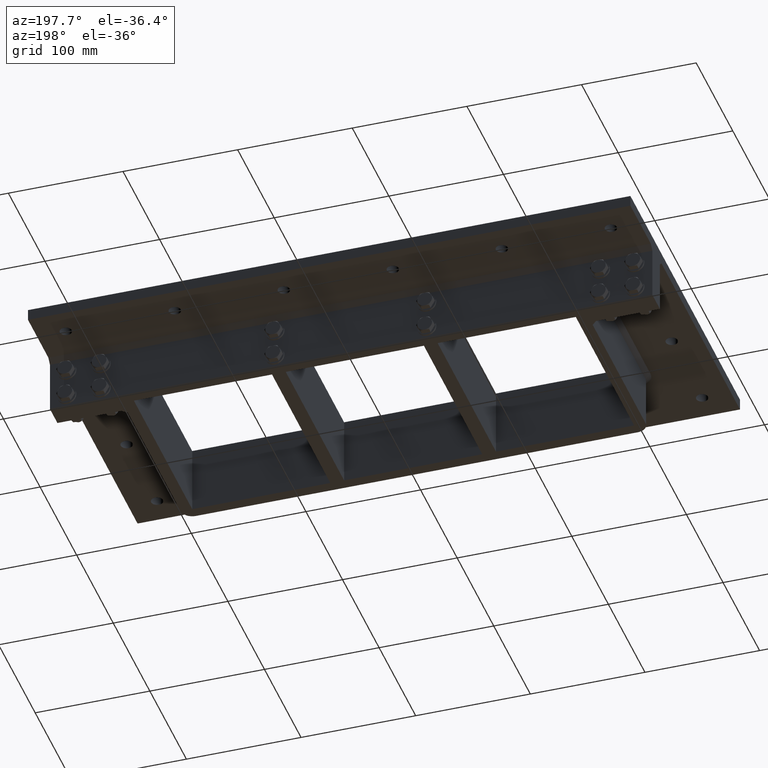
[diagram: clean part render]
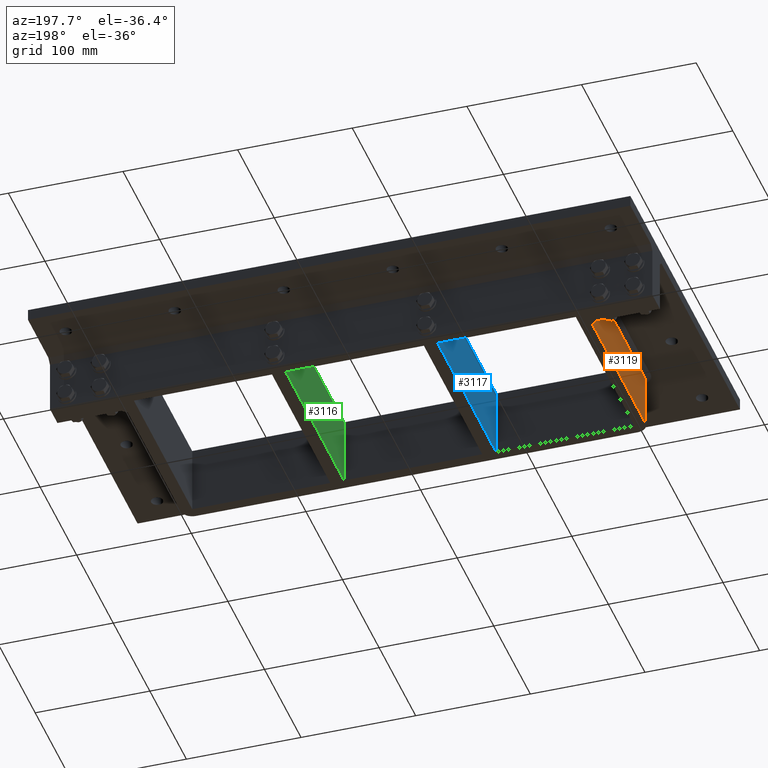
[diagram: same view with three faces highlighted in distinct colors, each labeled with its STEP entity id]
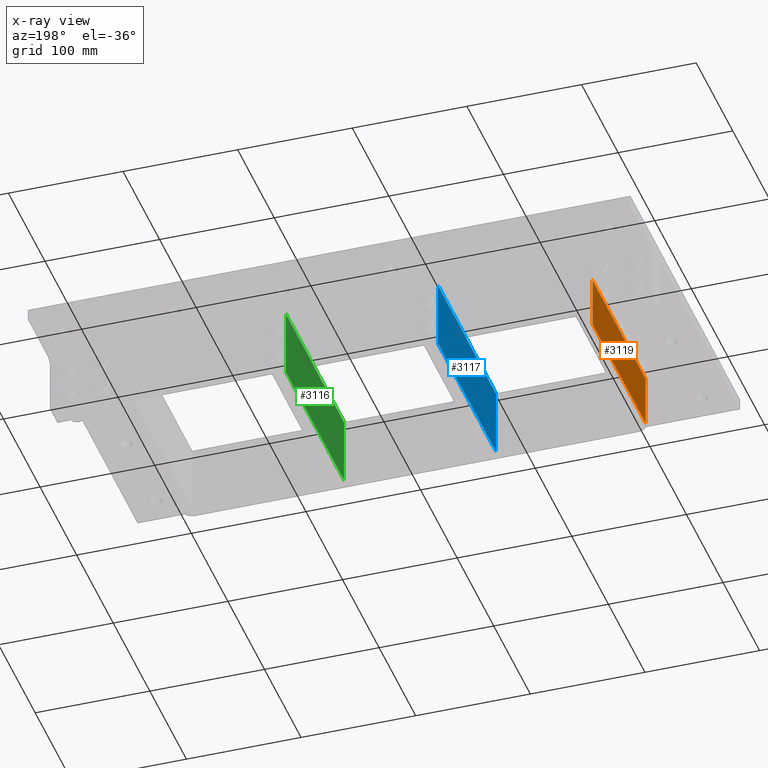
[diagram: x-ray of the same camera — body ghosted, the three highlighted faces saturated]
A machine part, auxiliary view with three faces highlighted in distinct colors.
The next image is the same camera in x-ray (body ghosted, the three faces saturated) — at least one of them is partly hidden behind the body in this view.
Their STEP definitions:

[orange] entity #3119 — the highlighted planar face has unit normal (-1, -0, 0).
#560=FACE_OUTER_BOUND('',#773,.T.);
#773=EDGE_LOOP('',(#2390,#2391,#2392,#2393));
#975=LINE('',#4779,#1218);
#989=LINE('',#4814,#1232);
#1041=LINE('',#4994,#1284);
#1067=LINE('',#5062,#1310);
#1218=VECTOR('',#3832,10.);
#1232=VECTOR('',#3866,10.);
#1284=VECTOR('',#4038,10.);
#1310=VECTOR('',#4104,10.);
#1455=VERTEX_POINT('',#4764);
#1460=VERTEX_POINT('',#4777);
#1471=VERTEX_POINT('',#4808);
#1539=VERTEX_POINT('',#4992);
#1734=EDGE_CURVE('',#1460,#1455,#975,.T.);
#1752=EDGE_CURVE('',#1455,#1471,#989,.T.);
#1840=EDGE_CURVE('',#1539,#1460,#1041,.T.);
#1876=EDGE_CURVE('',#1471,#1539,#1067,.T.);
#2390=ORIENTED_EDGE('',*,*,#1734,.F.);
#2391=ORIENTED_EDGE('',*,*,#1840,.F.);
#2392=ORIENTED_EDGE('',*,*,#1876,.F.);
#2393=ORIENTED_EDGE('',*,*,#1752,.F.);
#3011=PLANE('',#3558);
#3119=ADVANCED_FACE('',(#560),#3011,.T.);
#3558=AXIS2_PLACEMENT_3D('',#5061,#4102,#4103);
#3832=DIRECTION('',(0.,0.,1.));
#3866=DIRECTION('',(2.22740669517273E-16,-1.,0.));
#4038=DIRECTION('',(-2.22740669517273E-16,1.,0.));
#4102=DIRECTION('center_axis',(-1.,-2.22740669517273E-16,0.));
#4103=DIRECTION('ref_axis',(-2.22740669517273E-16,1.,0.));
#4104=DIRECTION('',(0.,0.,-1.));
#4764=CARTESIAN_POINT('',(-202.75,64.95,-14.3));
#4777=CARTESIAN_POINT('',(-202.75,64.95,-60.));
#4779=CARTESIAN_POINT('',(-202.75,64.95,0.));
#4808=CARTESIAN_POINT('',(-202.75,-79.75,-14.3));
#4814=CARTESIAN_POINT('',(-202.75,-39.875,-14.3));
#4992=CARTESIAN_POINT('',(-202.75,-79.75,-60.));
#4994=CARTESIAN_POINT('',(-202.75,79.75,-60.));
#5061=CARTESIAN_POINT('Origin',(-202.75,-79.75,0.));
#5062=CARTESIAN_POINT('',(-202.75,-79.75,0.));

[blue] entity #3117 — the highlighted planar face has unit normal (1, 0, 0).
#558=FACE_OUTER_BOUND('',#771,.T.);
#771=EDGE_LOOP('',(#2382,#2383,#2384,#2385));
#1028=LINE('',#4966,#1271);
#1055=LINE('',#5022,#1298);
#1063=LINE('',#5054,#1306);
#1065=LINE('',#5058,#1308);
#1271=VECTOR('',#4021,10.);
#1298=VECTOR('',#4056,10.);
#1306=VECTOR('',#4092,10.);
#1308=VECTOR('',#4098,10.);
#1525=VERTEX_POINT('',#4963);
#1526=VERTEX_POINT('',#4965);
#1550=VERTEX_POINT('',#5019);
#1551=VERTEX_POINT('',#5021);
#1825=EDGE_CURVE('',#1525,#1526,#1028,.T.);
#1854=EDGE_CURVE('',#1550,#1551,#1055,.T.);
#1872=EDGE_CURVE('',#1550,#1526,#1063,.T.);
#1874=EDGE_CURVE('',#1551,#1525,#1065,.T.);
#2382=ORIENTED_EDGE('',*,*,#1872,.T.);
#2383=ORIENTED_EDGE('',*,*,#1825,.F.);
#2384=ORIENTED_EDGE('',*,*,#1874,.F.);
#2385=ORIENTED_EDGE('',*,*,#1854,.F.);
#3009=PLANE('',#3556);
#3117=ADVANCED_FACE('',(#558),#3009,.F.);
#3556=AXIS2_PLACEMENT_3D('',#5057,#4096,#4097);
#4021=DIRECTION('',(-2.22740669517273E-16,1.,0.));
#4056=DIRECTION('',(2.22740669517273E-16,-1.,0.));
#4092=DIRECTION('',(0.,0.,-1.));
#4096=DIRECTION('center_axis',(1.,2.22740669517273E-16,0.));
#4097=DIRECTION('ref_axis',(2.22740669517273E-16,-1.,0.));
#4098=DIRECTION('',(0.,0.,-1.));
#4963=CARTESIAN_POINT('',(-72.25,-79.75,-60.));
#4965=CARTESIAN_POINT('',(-72.2500000000001,79.25,-60.));
#4966=CARTESIAN_POINT('',(-72.25,39.875,-60.));
#5019=CARTESIAN_POINT('',(-72.2500000000001,79.25,0.));
#5021=CARTESIAN_POINT('',(-72.25,-79.75,0.));
#5022=CARTESIAN_POINT('',(-72.25,39.875,0.));
#5054=CARTESIAN_POINT('',(-72.2500000000001,79.25,0.));
#5057=CARTESIAN_POINT('Origin',(-72.2500000000001,79.75,0.));
#5058=CARTESIAN_POINT('',(-72.25,-79.75,0.));

[green] entity #3116 — the highlighted planar face has unit normal (1, 0, 0).
#557=FACE_OUTER_BOUND('',#770,.T.);
#770=EDGE_LOOP('',(#2378,#2379,#2380,#2381));
#1032=LINE('',#4974,#1275);
#1051=LINE('',#5014,#1294);
#1060=LINE('',#5050,#1303);
#1064=LINE('',#5056,#1307);
#1275=VECTOR('',#4025,10.);
#1294=VECTOR('',#4052,10.);
#1303=VECTOR('',#4087,10.);
#1307=VECTOR('',#4095,10.);
#1529=VERTEX_POINT('',#4971);
#1530=VERTEX_POINT('',#4973);
#1546=VERTEX_POINT('',#5011);
#1547=VERTEX_POINT('',#5013);
#1829=EDGE_CURVE('',#1529,#1530,#1032,.T.);
#1850=EDGE_CURVE('',#1546,#1547,#1051,.T.);
#1869=EDGE_CURVE('',#1546,#1530,#1060,.T.);
#1873=EDGE_CURVE('',#1547,#1529,#1064,.T.);
#2378=ORIENTED_EDGE('',*,*,#1869,.T.);
#2379=ORIENTED_EDGE('',*,*,#1829,.F.);
#2380=ORIENTED_EDGE('',*,*,#1873,.F.);
#2381=ORIENTED_EDGE('',*,*,#1850,.F.);
#3008=PLANE('',#3555);
#3116=ADVANCED_FACE('',(#557),#3008,.F.);
#3555=AXIS2_PLACEMENT_3D('',#5055,#4093,#4094);
#4025=DIRECTION('',(-2.22740669517273E-16,1.,0.));
#4052=DIRECTION('',(2.22740669517273E-16,-1.,0.));
#4087=DIRECTION('',(0.,0.,-1.));
#4093=DIRECTION('center_axis',(1.,2.22740669517273E-16,0.));
#4094=DIRECTION('ref_axis',(2.22740669517273E-16,-1.,0.));
#4095=DIRECTION('',(0.,0.,-1.));
#4971=CARTESIAN_POINT('',(60.25,-79.75,-60.));
#4973=CARTESIAN_POINT('',(60.2499999999999,79.25,-60.));
#4974=CARTESIAN_POINT('',(60.25,39.875,-60.));
#5011=CARTESIAN_POINT('',(60.2499999999999,79.25,0.));
#5013=CARTESIAN_POINT('',(60.25,-79.75,0.));
#5014=CARTESIAN_POINT('',(60.25,39.875,0.));
#5050=CARTESIAN_POINT('',(60.25,79.25,0.));
#5055=CARTESIAN_POINT('Origin',(60.25,79.75,0.));
#5056=CARTESIAN_POINT('',(60.25,-79.75,0.));